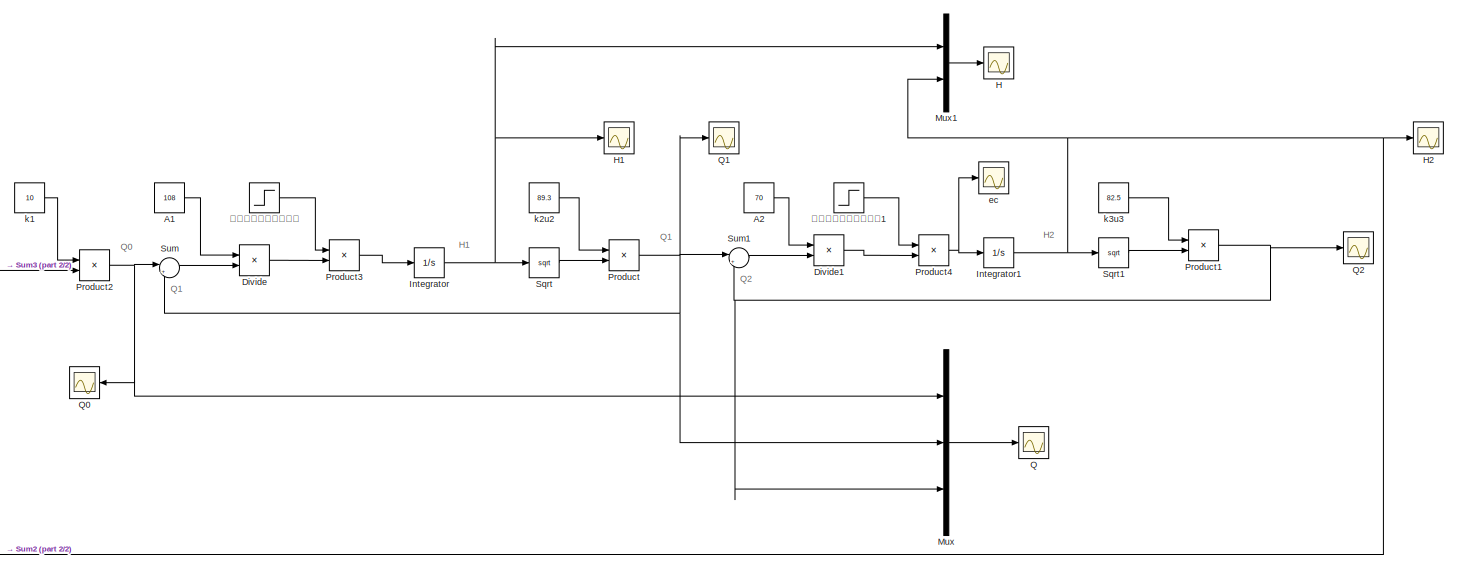
[diagram: root canvas - part 1/2, center side, full height]
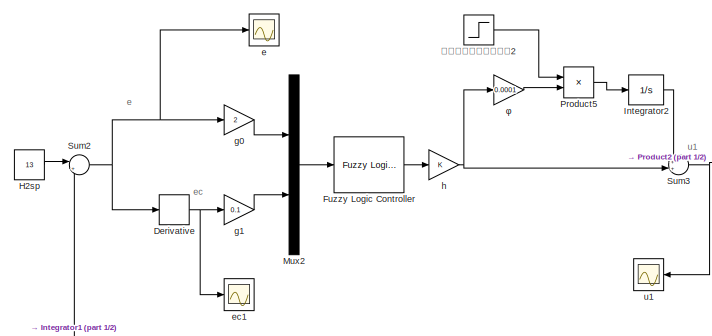
[diagram: root canvas - part 2/2, middle left region]
MODEL slx_e4fd5b60e864
KIND model
CONFIG AbsTol = auto
CONFIG EnableMultiTasking = off
CONFIG FixedStep = auto
CONFIG MaxStep = auto
CONFIG MinStep = auto
CONFIG RelTol = 1e-3
CONFIG SampleTimeConstraint = Unconstrained
CONFIG SolverName = VariableStepAuto
CONFIG StartTime = 0.0
CONFIG StopTime = 100
BLOCK [Constant] A1
  Value = 108
BLOCK [Constant] A2
  Value = 70
BLOCK [Derivative] Derivative
BLOCK [Product] Divide
  Inputs = /*
  Ports = [2, 1]
BLOCK [Product] Divide1
  Inputs = /*
  Ports = [2, 1]
BLOCK [Reference] Fuzzy Logic Controller  REF=fuzblock/Fuzzy Logic   (lib defined in mdl_858b3b3e7478)
Controller
  Ports = [1, 1]
  SourceBlock = fuzblock/Fuzzy Logic \nController
  SourceProductBaseCode = FL
  SourceType = Fuzzy Inference System
BLOCK [Scope] H
  Floating = off
  NumInputPorts = 1
  Ports = [1]
  ScopeSpecificationString = Simulink.scopes.TimeScopeBlockCfg('CurrentConfiguration', extmgr.ConfigurationSet(extmgr.Configuration('Core','General UI',true),extmgr.Configuration('Core','Source UI',true),extmgr.Configuration('Sources','WiredSimulink',true,'DataLoggingVariableName','ScopeData1'),extmgr.Configuration('Visuals','Time Domain',true,'SerializedDisplays',{struct('MinYLimReal','9.62308','MaxYLimReal','13.39232','YLab...<+1412ch>
BLOCK [Scope] H1
  Floating = off
  NumInputPorts = 1
  Ports = [1]
  ScopeSpecificationString = Simulink.scopes.TimeScopeBlockCfg('CurrentConfiguration', extmgr.ConfigurationSet(extmgr.Configuration('Core','General UI',true),extmgr.Configuration('Core','Source UI',true),extmgr.Configuration('Sources','WiredSimulink',true,'DataLoggingVariableName','ScopeData2'),extmgr.Configuration('Visuals','Time Domain',true,'SerializedDisplays',{struct('MinYLimReal','9.85674','MaxYLimReal','11.28938','YLab...<+1400ch>
BLOCK [Scope] H2
  Floating = off
  NumInputPorts = 1
  Ports = [1]
  ScopeSpecificationString = Simulink.scopes.TimeScopeBlockCfg('CurrentConfiguration', extmgr.ConfigurationSet(extmgr.Configuration('Core','General UI',true),extmgr.Configuration('Core','Source UI',true),extmgr.Configuration('Sources','WiredSimulink',true,'DataLoggingVariableName','ScopeData3'),extmgr.Configuration('Visuals','Time Domain',true,'SerializedDisplays',{struct('MinYLimReal','12.46251','MaxYLimReal','13.34101','YLa...<+1405ch>
BLOCK [Constant] H2sp
  Value = 13
BLOCK [Integrator] Integrator
  InitialCondition = 10
  Ports = [1, 1]
BLOCK [Integrator] Integrator1
  InitialCondition = 13
  Ports = [1, 1]
BLOCK [Integrator] Integrator2
  LimitOutput = on
  LowerSaturationLimit = -0.1
  Ports = [1, 1]
  UpperSaturationLimit = 0.1
BLOCK [Mux] Mux
  DisplayOption = bar
  Inputs = 3
  Ports = [3, 1]
BLOCK [Mux] Mux1
  DisplayOption = bar
  Inputs = 2
  Ports = [2, 1]
BLOCK [Mux] Mux2
  DisplayOption = bar
  Inputs = 2
  Ports = [2, 1]
BLOCK [Product] Product
  Ports = [2, 1]
BLOCK [Product] Product1
  Ports = [2, 1]
BLOCK [Product] Product2
  Ports = [2, 1]
BLOCK [Product] Product3
  Ports = [2, 1]
BLOCK [Product] Product4
  Ports = [2, 1]
BLOCK [Product] Product5
  Ports = [2, 1]
BLOCK [Scope] Q
  Floating = off
  NumInputPorts = 1
  Ports = [1]
  ScopeSpecificationString = Simulink.scopes.TimeScopeBlockCfg('CurrentConfiguration', extmgr.ConfigurationSet(extmgr.Configuration('Core','General UI',true),extmgr.Configuration('Core','Source UI',true),extmgr.Configuration('Sources','WiredSimulink',true,'DataLoggingVariableName','ScopeData4'),extmgr.Configuration('Visuals','Time Domain',true,'SerializedDisplays',{struct('MinYLimReal','280.27349','MaxYLimReal','301.45258','Y...<+1431ch>
BLOCK [Scope] Q0
  Floating = off
  NumInputPorts = 1
  Ports = [1]
  ScopeSpecificationString = Simulink.scopes.TimeScopeBlockCfg('CurrentConfiguration', extmgr.ConfigurationSet(extmgr.Configuration('Core','General UI',true),extmgr.Configuration('Core','Source UI',true),extmgr.Configuration('Sources','WiredSimulink',true,'DataLoggingVariableName','ScopeData5'),extmgr.Configuration('Visuals','Time Domain',true,'SerializedDisplays',{struct('MinYLimReal','276.65957','MaxYLimReal','330.0639','YL...<+1406ch>
BLOCK [Scope] Q1
  Floating = off
  NumInputPorts = 1
  Ports = [1]
  ScopeSpecificationString = Simulink.scopes.TimeScopeBlockCfg('CurrentConfiguration', extmgr.ConfigurationSet(extmgr.Configuration('Core','General UI',true),extmgr.Configuration('Core','Source UI',true),extmgr.Configuration('Sources','WiredSimulink',true,'DataLoggingVariableName','ScopeData6'),extmgr.Configuration('Visuals','Time Domain',true,'SerializedDisplays',{struct('MinYLimReal','281.95108','MaxYLimReal','282.44032','Y...<+1409ch>
BLOCK [Scope] Q2
  Floating = off
  NumInputPorts = 1
  Ports = [1]
  ScopeSpecificationString = Simulink.scopes.TimeScopeBlockCfg('CurrentConfiguration', extmgr.ConfigurationSet(extmgr.Configuration('Core','General UI',true),extmgr.Configuration('Core','Source UI',true),extmgr.Configuration('Sources','WiredSimulink',true,'DataLoggingVariableName','ScopeData7'),extmgr.Configuration('Visuals','Time Domain',true,'SerializedDisplays',{struct('MinYLimReal','280.06776','MaxYLimReal','299.39023','Y...<+1410ch>
BLOCK [Sqrt] Sqrt
BLOCK [Sqrt] Sqrt1
BLOCK [Sum] Sum
  Inputs = |+-
  Ports = [2, 1]
BLOCK [Sum] Sum1
  Inputs = |+-
  Ports = [2, 1]
BLOCK [Sum] Sum2
  Inputs = |+-
  Ports = [2, 1]
BLOCK [Sum] Sum3
  Inputs = ++|
  Ports = [2, 1]
BLOCK [Scope] e
  Floating = off
  NumInputPorts = 1
  Ports = [1]
  ScopeSpecificationString = Simulink.scopes.TimeScopeBlockCfg('CurrentConfiguration', extmgr.ConfigurationSet(extmgr.Configuration('Core','General UI',true),extmgr.Configuration('Core','Source UI',true),extmgr.Configuration('Sources','WiredSimulink',true,'DataLoggingVariableName','ScopeData8'),extmgr.Configuration('Visuals','Time Domain',true,'SerializedDisplays',{struct('MinYLimReal','-0.08329','MaxYLimReal','0.59569','YLab...<+1392ch>
BLOCK [Scope] ec
  Floating = off
  NumInputPorts = 1
  Ports = [1]
  ScopeSpecificationString = Simulink.scopes.TimeScopeBlockCfg('CurrentConfiguration', extmgr.ConfigurationSet(extmgr.Configuration('Core','General UI',true),extmgr.Configuration('Core','Source UI',true),extmgr.Configuration('Sources','WiredSimulink',true,'DataLoggingVariableName','ScopeData9'),extmgr.Configuration('Visuals','Time Domain',true,'SerializedDisplays',{struct('MinYLimReal','-0.24566','MaxYLimReal','0.05856','YLab...<+1395ch>
BLOCK [Scope] ec1
  Floating = off
  NumInputPorts = 1
  Ports = [1]
  ScopeSpecificationString = Simulink.scopes.TimeScopeBlockCfg('CurrentConfiguration', extmgr.ConfigurationSet(extmgr.Configuration('Core','General UI',true),extmgr.Configuration('Core','Source UI',true),extmgr.Configuration('Sources','WiredSimulink',true,'DataLoggingVariableName','ScopeData10'),extmgr.Configuration('Visuals','Time Domain',true,'SerializedDisplays',{struct('MinYLimReal','-0.0603','MaxYLimReal','0.24976','YLab...<+1397ch>
BLOCK [Gain] g0
  Gain = 2
BLOCK [Gain] g1
  Gain = 0.1
BLOCK [Gain] h
BLOCK [Constant] k1
  Value = 10
BLOCK [Constant] k2u2
  Value = 89.3
BLOCK [Constant] k3u3
  Value = 82.5
BLOCK [Scope] u1
  Floating = off
  NumInputPorts = 1
  Ports = [1]
  ScopeSpecificationString = Simulink.scopes.TimeScopeBlockCfg('CurrentConfiguration', extmgr.ConfigurationSet(extmgr.Configuration('Core','General UI',true),extmgr.Configuration('Core','Source UI',true),extmgr.Configuration('Sources','WiredSimulink',true),extmgr.Configuration('Visuals','Time Domain',true,'SerializedDisplays',{struct('MinYLimReal','29.60519','MaxYLimReal','30.05292','YLabelReal','','MinYLimMag','29.60519','Ma...<+1359ch>
BLOCK [Gain] φ
  Gain = 0.0001
BLOCK [Step] 屏蔽阶跃前的积分信号
  SampleTime = 0
  Time = 5
BLOCK [Step] 屏蔽阶跃前的积分信号1
  SampleTime = 0
  Time = 5
BLOCK [Step] 屏蔽阶跃前的积分信号2
  SampleTime = 0
  Time = 5
ANNOTATION (root): H1
ANNOTATION (root): H2
ANNOTATION (root): Q0
ANNOTATION (root): Q1
ANNOTATION (root): Q2
ANNOTATION (root): e
ANNOTATION (root): ec
ANNOTATION (root): u1
LINE A1:1 -> Divide:1
LINE A2:1 -> Divide1:1
NET Derivative:1 -> ec1:1, g1:1
LINE Divide1:1 -> Product4:2
LINE Divide:1 -> Product3:2
LINE Fuzzy Logic Controller:1 -> h:1
LINE H2sp:1 -> Sum2:1
NET Integrator1:1 -> H2:1, Mux1:2, Sqrt1:1, Sum2:2
LINE Integrator2:1 -> Sum3:1
NET Integrator:1 -> H1:1, Mux1:1, Sqrt:1
LINE Mux1:1 -> H:1
LINE Mux2:1 -> Fuzzy Logic Controller:1
LINE Mux:1 -> Q:1
NET Product1:1 -> Mux:3, Q2:1, Sum1:2
NET Product2:1 -> Mux:1, Q0:1, Sum:1
LINE Product3:1 -> Integrator:1
NET Product4:1 -> Integrator1:1, ec:1
LINE Product5:1 -> Integrator2:1
NET Product:1 -> Mux:2, Q1:1, Sum1:1, Sum:2
LINE Sqrt1:1 -> Product1:2
LINE Sqrt:1 -> Product:2
LINE Sum1:1 -> Divide1:2
NET Sum2:1 -> Derivative:1, e:1, g0:1
NET Sum3:1 -> Product2:2, u1:1
LINE Sum:1 -> Divide:2
LINE g0:1 -> Mux2:1
LINE g1:1 -> Mux2:2
NET h:1 -> Sum3:2, φ:1
LINE k1:1 -> Product2:1
LINE k2u2:1 -> Product:1
LINE k3u3:1 -> Product1:1
LINE φ:1 -> Product5:2
LINE 屏蔽阶跃前的积分信号1:1 -> Product4:1
LINE 屏蔽阶跃前的积分信号2:1 -> Product5:1
LINE 屏蔽阶跃前的积分信号:1 -> Product3:1
note: NET lines group one-source signal fan-out (src -> all destinations, sorted); 1:1 wires keep LINE
